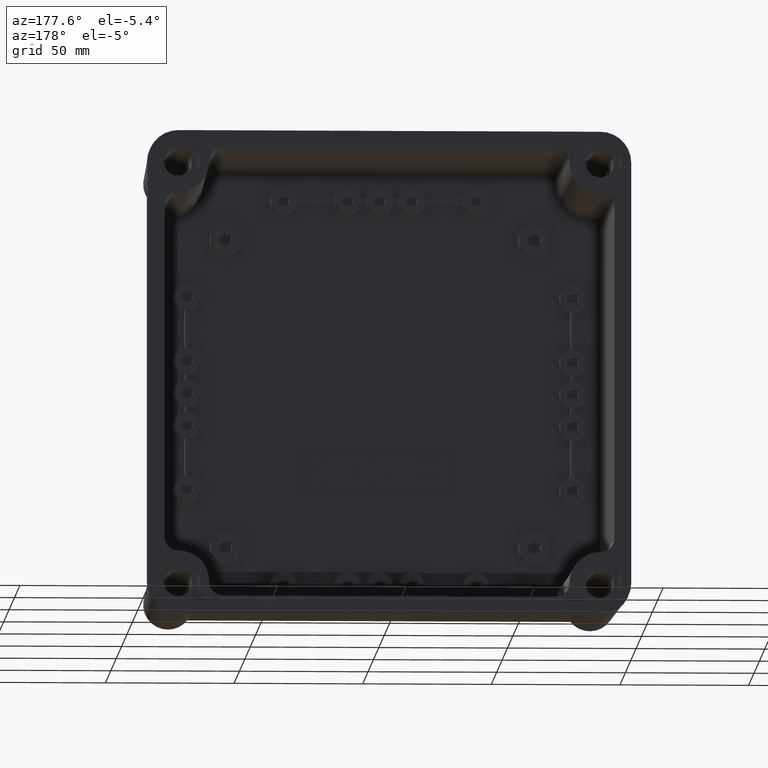
[diagram: clean part render]
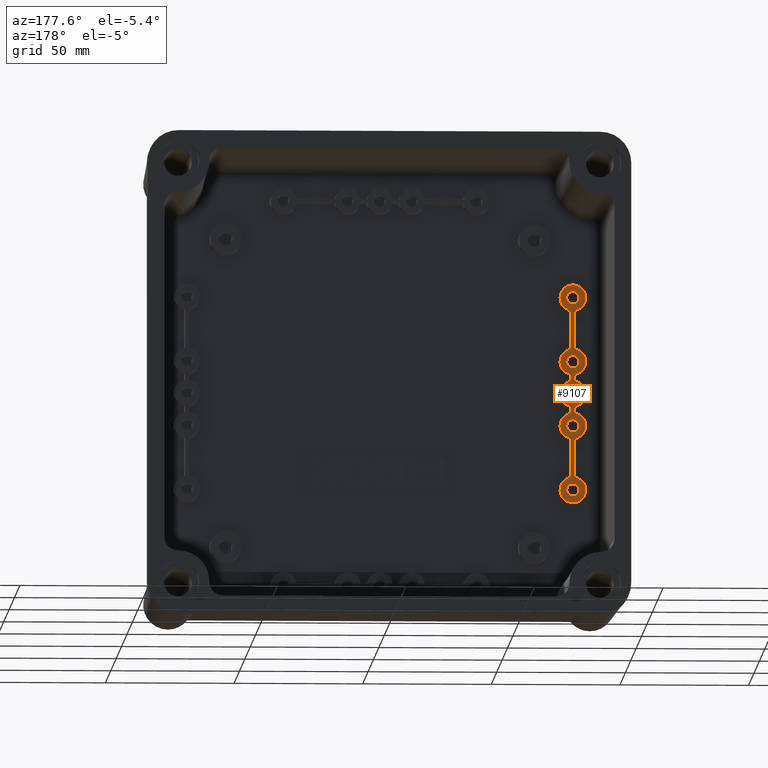
[diagram: same view with one face highlighted and labeled with its STEP entity id]
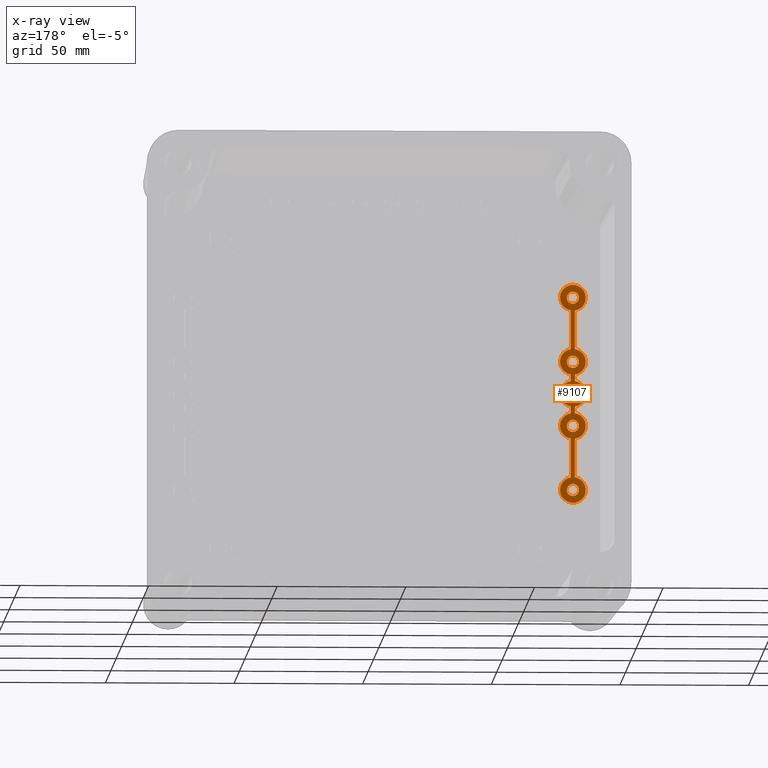
[diagram: x-ray of the same camera — body ghosted, the highlighted face saturated]
A machine part, auxiliary view. The second image highlights one B-rep face of the part: STEP entity #9107.
The next image is the same camera in x-ray: the body ghosted, the highlighted face saturated — about 0% of this face is hidden behind the body in this view.
In plain terms, the highlighted planar face has unit normal (0, 1, 0).
Its self-contained STEP definition (entity closure, byte-faithful):
#2040 = CARTESIAN_POINT ( 'NONE',  ( -75.00000000000000000, 10.49999999999999800, -42.49999999999999300 ) ) ;
#3283 = CARTESIAN_POINT ( 'NONE',  ( -75.00000000000000000, 10.49999999999999800, -14.89999999999999300 ) ) ;
#3326 = CARTESIAN_POINT ( 'NONE',  ( -75.00000000000000000, 10.49999999999999800, -39.89999999999999100 ) ) ;
#3351 = DIRECTION ( 'NONE',  ( 0.0000000000000000000, 0.0000000000000000000, 1.000000000000000000 ) ) ;
#3352 = DIRECTION ( 'NONE',  ( 0.0000000000000000000, 1.000000000000000000, 0.0000000000000000000 ) ) ;
#3353 = AXIS2_PLACEMENT_3D ( 'NONE', #3365, #3352, #3351 ) ;
#3365 = CARTESIAN_POINT ( 'NONE',  ( -75.00000000000000000, 10.49999999999999800, -37.49999999999999300 ) ) ;
#3367 = CARTESIAN_POINT ( 'NONE',  ( -75.00000000000000000, 10.49999999999999800, -35.09999999999999400 ) ) ;
#3378 = CIRCLE ( 'NONE', #3353, 2.399999999999999500 ) ;
#3415 = AXIS2_PLACEMENT_3D ( 'NONE', #3478, #3477, #3476 ) ;
#3426 = CIRCLE ( 'NONE', #3415, 2.400000000000001200 ) ;
#3448 = DIRECTION ( 'NONE',  ( 0.0000000000000000000, 1.000000000000000000, 0.0000000000000000000 ) ) ;
#3449 = CIRCLE ( 'NONE', #3502, 2.400000000000001200 ) ;
#3458 = CARTESIAN_POINT ( 'NONE',  ( -75.00000000000000000, 10.49999999999999800, 37.49999999999999300 ) ) ;
#3459 = CARTESIAN_POINT ( 'NONE',  ( -75.00000000000000000, 10.49999999999999800, 35.09999999999999400 ) ) ;
#3473 = CARTESIAN_POINT ( 'NONE',  ( -75.00000000000000000, 10.49999999999999800, -10.09999999999999100 ) ) ;
#3476 = DIRECTION ( 'NONE',  ( 0.0000000000000000000, 0.0000000000000000000, 1.000000000000000000 ) ) ;
#3477 = DIRECTION ( 'NONE',  ( 0.0000000000000000000, 1.000000000000000000, 0.0000000000000000000 ) ) ;
#3478 = CARTESIAN_POINT ( 'NONE',  ( -75.00000000000000000, 10.49999999999999800, -12.49999999999999300 ) ) ;
#3480 = CARTESIAN_POINT ( 'NONE',  ( -75.00000000000000000, 10.49999999999999800, 14.89999999999999300 ) ) ;
#3488 = DIRECTION ( 'NONE',  ( 0.0000000000000000000, 0.0000000000000000000, 1.000000000000000000 ) ) ;
#3489 = DIRECTION ( 'NONE',  ( 0.0000000000000000000, 1.000000000000000000, 0.0000000000000000000 ) ) ;
#3493 = CARTESIAN_POINT ( 'NONE',  ( -75.00000000000000000, 10.49999999999999800, 39.89999999999999100 ) ) ;
#3501 = CARTESIAN_POINT ( 'NONE',  ( -75.00000000000000000, 10.49999999999999800, 10.09999999999999100 ) ) ;
#3502 = AXIS2_PLACEMENT_3D ( 'NONE', #3507, #3489, #3488 ) ;
#3507 = CARTESIAN_POINT ( 'NONE',  ( -75.00000000000000000, 10.49999999999999800, 12.49999999999999300 ) ) ;
#3508 = DIRECTION ( 'NONE',  ( 0.0000000000000000000, 0.0000000000000000000, 1.000000000000000000 ) ) ;
#3509 = AXIS2_PLACEMENT_3D ( 'NONE', #3458, #3448, #3508 ) ;
#3510 = CIRCLE ( 'NONE', #3509, 2.399999999999999500 ) ;
#3612 = AXIS2_PLACEMENT_3D ( 'NONE', #3685, #3684, #3683 ) ;
#3628 = CARTESIAN_POINT ( 'NONE',  ( -75.00000000000000000, 10.49999999999999800, -2.400000000000000800 ) ) ;
#3630 = CIRCLE ( 'NONE', #3612, 2.400000000000000800 ) ;
#3632 = CARTESIAN_POINT ( 'NONE',  ( -75.00000000000000000, 10.49999999999999800, 2.400000000000000800 ) ) ;
#3683 = DIRECTION ( 'NONE',  ( 0.0000000000000000000, 0.0000000000000000000, 1.000000000000000000 ) ) ;
#3684 = DIRECTION ( 'NONE',  ( 0.0000000000000000000, 1.000000000000000000, 0.0000000000000000000 ) ) ;
#3685 = CARTESIAN_POINT ( 'NONE',  ( -75.00000000000000000, 10.49999999999999800, 0.0000000000000000000 ) ) ;
#3919 = CIRCLE ( 'NONE', #4173, 4.999999999999988500 ) ;
#4173 = AXIS2_PLACEMENT_3D ( 'NONE', #4192, #4191, #4180 ) ;
#4180 = DIRECTION ( 'NONE',  ( 0.0000000000000000000, 0.0000000000000000000, 1.000000000000000000 ) ) ;
#4184 = DIRECTION ( 'NONE',  ( 0.0000000000000000000, 0.0000000000000000000, 1.000000000000000000 ) ) ;
#4185 = DIRECTION ( 'NONE',  ( 0.0000000000000000000, 1.000000000000000000, 0.0000000000000000000 ) ) ;
#4190 = CIRCLE ( 'NONE', #4205, 2.400000000000001200 ) ;
#4191 = DIRECTION ( 'NONE',  ( -0.0000000000000000000, -1.000000000000000000, -0.0000000000000000000 ) ) ;
#4192 = CARTESIAN_POINT ( 'NONE',  ( -75.00000000000000000, 10.49999999999999800, 12.49999999999999300 ) ) ;
#4198 = CARTESIAN_POINT ( 'NONE',  ( -75.00000000000000000, 10.49999999999999800, 12.49999999999999300 ) ) ;
#4205 = AXIS2_PLACEMENT_3D ( 'NONE', #4198, #4185, #4184 ) ;
#4464 = CARTESIAN_POINT ( 'NONE',  ( -74.24999999999998600, 10.49999999999999800, 7.556570016678707100 ) ) ;
#4486 = CARTESIAN_POINT ( 'NONE',  ( -75.75000000000000000, 10.49999999999999800, -4.943429983321292000 ) ) ;
#4578 = CARTESIAN_POINT ( 'NONE',  ( -74.24999999999998600, 10.49999999999999800, -17.44342998332127300 ) ) ;
#4611 = CARTESIAN_POINT ( 'NONE',  ( -74.24999999999998600, 10.49999999999999800, 32.55657001667868400 ) ) ;
#4632 = CARTESIAN_POINT ( 'NONE',  ( -75.74999999999998600, 10.49999999999999800, 32.55657001667868400 ) ) ;
#4647 = DIRECTION ( 'NONE',  ( 0.0000000000000000000, 0.0000000000000000000, 1.000000000000000000 ) ) ;
#4648 = DIRECTION ( 'NONE',  ( 0.0000000000000000000, 1.000000000000000000, 0.0000000000000000000 ) ) ;
#4649 = CARTESIAN_POINT ( 'NONE',  ( -75.00000000000000000, 10.49999999999999800, 37.49999999999999300 ) ) ;
#4655 = DIRECTION ( 'NONE',  ( 0.0000000000000000000, 0.0000000000000000000, 1.000000000000000000 ) ) ;
#4656 = VECTOR ( 'NONE', #4655, 1000.000000000000000 ) ;
#4657 = CARTESIAN_POINT ( 'NONE',  ( -74.25000000000000000, 10.49999999999999800, -37.50000000000000700 ) ) ;
#4658 = AXIS2_PLACEMENT_3D ( 'NONE', #4649, #4648, #4647 ) ;
#4660 = LINE ( 'NONE', #4657, #4656 ) ;
#4662 = CARTESIAN_POINT ( 'NONE',  ( -75.75000000000001400, 10.49999999999999800, 4.943429983321292000 ) ) ;
#4671 = DIRECTION ( 'NONE',  ( 0.0000000000000000000, 0.0000000000000000000, 1.000000000000000000 ) ) ;
#4672 = DIRECTION ( 'NONE',  ( -0.0000000000000000000, -1.000000000000000000, -0.0000000000000000000 ) ) ;
#4673 = AXIS2_PLACEMENT_3D ( 'NONE', #4676, #4672, #4671 ) ;
#4674 = CIRCLE ( 'NONE', #4673, 5.000000000000004400 ) ;
#4676 = CARTESIAN_POINT ( 'NONE',  ( -75.00000000000000000, 10.49999999999999800, 37.49999999999999300 ) ) ;
#4677 = CIRCLE ( 'NONE', #4658, 2.399999999999999500 ) ;
#4678 = CARTESIAN_POINT ( 'NONE',  ( -75.00000000000000000, 10.49999999999999800, -12.49999999999999300 ) ) ;
#4679 = FACE_BOUND ( 'NONE', #9043, .T. ) ;
#4683 = AXIS2_PLACEMENT_3D ( 'NONE', #4678, #4737, #4728 ) ;
#4684 = FACE_BOUND ( 'NONE', #9047, .T. ) ;
#4686 = CIRCLE ( 'NONE', #4727, 4.999999999999989300 ) ;
#4696 = CARTESIAN_POINT ( 'NONE',  ( -74.24999999999998600, 10.49999999999999800, -7.556570016678707100 ) ) ;
#4698 = CARTESIAN_POINT ( 'NONE',  ( -75.00000000000000000, 10.49999999999999800, -12.49999999999999300 ) ) ;
#4708 = CIRCLE ( 'NONE', #4716, 2.400000000000001200 ) ;
#4709 = DIRECTION ( 'NONE',  ( 0.0000000000000000000, 0.0000000000000000000, 1.000000000000000000 ) ) ;
#4710 = VECTOR ( 'NONE', #4709, 1000.000000000000000 ) ;
#4711 = CARTESIAN_POINT ( 'NONE',  ( -74.24999999999998600, 10.49999999999999800, 2.824565742577563400E-014 ) ) ;
#4712 = LINE ( 'NONE', #4711, #4779 ) ;
#4713 = DIRECTION ( 'NONE',  ( 0.0000000000000000000, 0.0000000000000000000, 1.000000000000000000 ) ) ;
#4714 = DIRECTION ( 'NONE',  ( 0.0000000000000000000, 1.000000000000000000, 0.0000000000000000000 ) ) ;
#4715 = CARTESIAN_POINT ( 'NONE',  ( 189.2621207869946100, 10.49999999999999800, 2.824565742577563400E-014 ) ) ;
#4716 = AXIS2_PLACEMENT_3D ( 'NONE', #4698, #4732, #4773 ) ;
#4717 = CARTESIAN_POINT ( 'NONE',  ( -74.25000000000000000, 10.49999999999999800, -37.50000000000000700 ) ) ;
#4718 = LINE ( 'NONE', #4717, #4710 ) ;
#4720 = CARTESIAN_POINT ( 'NONE',  ( -74.24999999999998600, 10.49999999999999800, -32.55657001667869100 ) ) ;
#4721 = FACE_OUTER_BOUND ( 'NONE', #9051, .T. ) ;
#4722 = PLANE ( 'NONE',  #4726 ) ;
#4723 = DIRECTION ( 'NONE',  ( 0.0000000000000000000, 0.0000000000000000000, 1.000000000000000000 ) ) ;
#4724 = DIRECTION ( 'NONE',  ( -0.0000000000000000000, -1.000000000000000000, -0.0000000000000000000 ) ) ;
#4725 = FACE_BOUND ( 'NONE', #9142, .T. ) ;
#4726 = AXIS2_PLACEMENT_3D ( 'NONE', #4715, #4714, #4713 ) ;
#4727 = AXIS2_PLACEMENT_3D ( 'NONE', #4738, #4724, #4723 ) ;
#4728 = DIRECTION ( 'NONE',  ( 0.0000000000000000000, 0.0000000000000000000, 1.000000000000000000 ) ) ;
#4729 = FACE_BOUND ( 'NONE', #9238, .T. ) ;
#4730 = FACE_BOUND ( 'NONE', #9124, .T. ) ;
#4731 = CIRCLE ( 'NONE', #4683, 4.999999999999989300 ) ;
#4732 = DIRECTION ( 'NONE',  ( 0.0000000000000000000, 1.000000000000000000, 0.0000000000000000000 ) ) ;
#4737 = DIRECTION ( 'NONE',  ( 0.0000000000000000000, 1.000000000000000000, 0.0000000000000000000 ) ) ;
#4738 = CARTESIAN_POINT ( 'NONE',  ( -75.00000000000000000, 10.49999999999999800, 0.0000000000000000000 ) ) ;
#4740 = DIRECTION ( 'NONE',  ( 0.0000000000000000000, 0.0000000000000000000, 1.000000000000000000 ) ) ;
#4741 = DIRECTION ( 'NONE',  ( 0.0000000000000000000, 1.000000000000000000, 0.0000000000000000000 ) ) ;
#4742 = CARTESIAN_POINT ( 'NONE',  ( -75.00000000000000000, 10.49999999999999800, -12.49999999999999300 ) ) ;
#4743 = DIRECTION ( 'NONE',  ( 0.0000000000000000000, 0.0000000000000000000, 1.000000000000000000 ) ) ;
#4744 = DIRECTION ( 'NONE',  ( -0.0000000000000000000, -1.000000000000000000, -0.0000000000000000000 ) ) ;
#4745 = CARTESIAN_POINT ( 'NONE',  ( -75.00000000000000000, 10.49999999999999800, 0.0000000000000000000 ) ) ;
#4746 = AXIS2_PLACEMENT_3D ( 'NONE', #4742, #4741, #4740 ) ;
#4748 = DIRECTION ( 'NONE',  ( 0.0000000000000000000, 0.0000000000000000000, 1.000000000000000000 ) ) ;
#4749 = VECTOR ( 'NONE', #4748, 1000.000000000000000 ) ;
#4750 = CARTESIAN_POINT ( 'NONE',  ( -74.25000000000000000, 10.49999999999999800, -37.50000000000000700 ) ) ;
#4753 = DIRECTION ( 'NONE',  ( -1.850371707708594300E-016, 0.0000000000000000000, 1.000000000000000000 ) ) ;
#4754 = VECTOR ( 'NONE', #4753, 1000.000000000000000 ) ;
#4755 = CARTESIAN_POINT ( 'NONE',  ( -75.75000000000000000, 10.49999999999999800, -37.50000000000000700 ) ) ;
#4756 = LINE ( 'NONE', #4755, #4754 ) ;
#4759 = AXIS2_PLACEMENT_3D ( 'NONE', #4745, #4744, #4743 ) ;
#4760 = LINE ( 'NONE', #4750, #4749 ) ;
#4764 = CIRCLE ( 'NONE', #4746, 4.999999999999989300 ) ;
#4765 = DIRECTION ( 'NONE',  ( -1.850371707708594300E-016, 0.0000000000000000000, 1.000000000000000000 ) ) ;
#4766 = VECTOR ( 'NONE', #4765, 1000.000000000000000 ) ;
#4767 = CARTESIAN_POINT ( 'NONE',  ( -75.75000000000000000, 10.49999999999999800, -37.50000000000000700 ) ) ;
#4768 = LINE ( 'NONE', #4767, #4766 ) ;
#4769 = CIRCLE ( 'NONE', #4759, 4.999999999999989300 ) ;
#4770 = CARTESIAN_POINT ( 'NONE',  ( -74.24999999999998600, 10.49999999999999800, 17.44342998332127300 ) ) ;
#4773 = DIRECTION ( 'NONE',  ( 0.0000000000000000000, 0.0000000000000000000, 1.000000000000000000 ) ) ;
#4774 = CARTESIAN_POINT ( 'NONE',  ( -75.75000000000000000, 10.49999999999999800, -7.556570016678701800 ) ) ;
#4776 = CARTESIAN_POINT ( 'NONE',  ( -74.24999999999998600, 10.49999999999999800, -4.943429983321284900 ) ) ;
#4777 = DIRECTION ( 'NONE',  ( 0.0000000000000000000, 0.0000000000000000000, 1.000000000000000000 ) ) ;
#4779 = VECTOR ( 'NONE', #4777, 1000.000000000000000 ) ;
#4794 = DIRECTION ( 'NONE',  ( 0.0000000000000000000, 0.0000000000000000000, 1.000000000000000000 ) ) ;
#4795 = DIRECTION ( 'NONE',  ( 0.0000000000000000000, 1.000000000000000000, 0.0000000000000000000 ) ) ;
#4796 = AXIS2_PLACEMENT_3D ( 'NONE', #4807, #4795, #4794 ) ;
#4797 = CIRCLE ( 'NONE', #4796, 5.000000000000004400 ) ;
#4801 = DIRECTION ( 'NONE',  ( 0.0000000000000000000, 0.0000000000000000000, 1.000000000000000000 ) ) ;
#4802 = DIRECTION ( 'NONE',  ( 0.0000000000000000000, 1.000000000000000000, 0.0000000000000000000 ) ) ;
#4803 = CARTESIAN_POINT ( 'NONE',  ( -75.00000000000000000, 10.49999999999999800, 0.0000000000000000000 ) ) ;
#4804 = AXIS2_PLACEMENT_3D ( 'NONE', #4803, #4802, #4801 ) ;
#4805 = CIRCLE ( 'NONE', #4804, 2.400000000000000800 ) ;
#4807 = CARTESIAN_POINT ( 'NONE',  ( -75.00000000000000000, 10.49999999999999800, -37.49999999999999300 ) ) ;
#4812 = CARTESIAN_POINT ( 'NONE',  ( -74.24999999999998600, 10.49999999999999800, 4.943429983321284900 ) ) ;
#4813 = CARTESIAN_POINT ( 'NONE',  ( -75.75000000000000000, 10.49999999999999800, -17.44342998332128000 ) ) ;
#4823 = CIRCLE ( 'NONE', #4827, 4.999999999999988500 ) ;
#4827 = AXIS2_PLACEMENT_3D ( 'NONE', #4830, #4864, #4863 ) ;
#4830 = CARTESIAN_POINT ( 'NONE',  ( -75.00000000000000000, 10.49999999999999800, 12.49999999999999300 ) ) ;
#4850 = DIRECTION ( 'NONE',  ( 0.0000000000000000000, 0.0000000000000000000, 1.000000000000000000 ) ) ;
#4851 = DIRECTION ( 'NONE',  ( 0.0000000000000000000, 1.000000000000000000, 0.0000000000000000000 ) ) ;
#4852 = CARTESIAN_POINT ( 'NONE',  ( -75.00000000000000000, 10.49999999999999800, -37.49999999999999300 ) ) ;
#4853 = AXIS2_PLACEMENT_3D ( 'NONE', #4852, #4851, #4850 ) ;
#4860 = CIRCLE ( 'NONE', #4853, 2.399999999999999500 ) ;
#4863 = DIRECTION ( 'NONE',  ( 0.0000000000000000000, 0.0000000000000000000, 1.000000000000000000 ) ) ;
#4864 = DIRECTION ( 'NONE',  ( -0.0000000000000000000, -1.000000000000000000, -0.0000000000000000000 ) ) ;
#4865 = CARTESIAN_POINT ( 'NONE',  ( -75.75000000000001400, 10.49999999999999800, 7.556570016678705300 ) ) ;
#4867 = CARTESIAN_POINT ( 'NONE',  ( -75.75000000000001400, 10.49999999999999800, 17.44342998332128000 ) ) ;
#4869 = DIRECTION ( 'NONE',  ( -1.850371707708594300E-016, 0.0000000000000000000, 1.000000000000000000 ) ) ;
#4870 = VECTOR ( 'NONE', #4869, 1000.000000000000000 ) ;
#4871 = CARTESIAN_POINT ( 'NONE',  ( -75.75000000000000000, 10.49999999999999800, -37.50000000000000700 ) ) ;
#4872 = LINE ( 'NONE', #4871, #4870 ) ;
#4873 = DIRECTION ( 'NONE',  ( -1.850371707708594300E-016, 0.0000000000000000000, 1.000000000000000000 ) ) ;
#4874 = VECTOR ( 'NONE', #4873, 1000.000000000000000 ) ;
#4875 = CARTESIAN_POINT ( 'NONE',  ( -75.74999999999998600, 10.49999999999999800, -2.079143562463510900E-014 ) ) ;
#4876 = LINE ( 'NONE', #4875, #4874 ) ;
#6663 = VERTEX_POINT ( 'NONE', #2040 ) ;
#7817 = VERTEX_POINT ( 'NONE', #3283 ) ;
#7828 = VERTEX_POINT ( 'NONE', #3326 ) ;
#7833 = VERTEX_POINT ( 'NONE', #3367 ) ;
#7843 = EDGE_CURVE ( 'NONE', #7828, #7833, #3378, .T. ) ;
#7896 = EDGE_CURVE ( 'NONE', #7817, #7924, #3426, .T. ) ;
#7899 = VERTEX_POINT ( 'NONE', #3480 ) ;
#7924 = VERTEX_POINT ( 'NONE', #3473 ) ;
#7925 = EDGE_CURVE ( 'NONE', #7956, #7940, #3510, .T. ) ;
#7939 = EDGE_CURVE ( 'NONE', #7949, #7899, #3449, .T. ) ;
#7940 = VERTEX_POINT ( 'NONE', #3493 ) ;
#7949 = VERTEX_POINT ( 'NONE', #3501 ) ;
#7956 = VERTEX_POINT ( 'NONE', #3459 ) ;
#8052 = VERTEX_POINT ( 'NONE', #3632 ) ;
#8066 = VERTEX_POINT ( 'NONE', #3628 ) ;
#8070 = EDGE_CURVE ( 'NONE', #8066, #8052, #3630, .T. ) ;
#8659 = CIRCLE ( 'NONE', #8662, 5.000000000000004400 ) ;
#8662 = AXIS2_PLACEMENT_3D ( 'NONE', #8678, #8795, #8786 ) ;
#8678 = CARTESIAN_POINT ( 'NONE',  ( -75.00000000000000000, 10.49999999999999800, -37.49999999999999300 ) ) ;
#8786 = DIRECTION ( 'NONE',  ( 0.0000000000000000000, 0.0000000000000000000, 1.000000000000000000 ) ) ;
#8795 = DIRECTION ( 'NONE',  ( 0.0000000000000000000, 1.000000000000000000, 0.0000000000000000000 ) ) ;
#8937 = CARTESIAN_POINT ( 'NONE',  ( -75.74999999999998600, 10.49999999999999800, -32.55657001667868400 ) ) ;
#8995 = VERTEX_POINT ( 'NONE', #4632 ) ;
#9002 = VERTEX_POINT ( 'NONE', #4611 ) ;
#9010 = EDGE_CURVE ( 'NONE', #9002, #8995, #4674, .T. ) ;
#9034 = VERTEX_POINT ( 'NONE', #4578 ) ;
#9035 = ORIENTED_EDGE ( 'NONE', *, *, #9109, .F. ) ;
#9037 = ORIENTED_EDGE ( 'NONE', *, *, #9045, .F. ) ;
#9038 = ORIENTED_EDGE ( 'NONE', *, *, #9155, .F. ) ;
#9041 = ORIENTED_EDGE ( 'NONE', *, *, #8070, .F. ) ;
#9043 = EDGE_LOOP ( 'NONE', ( #9096, #9153 ) ) ;
#9045 = EDGE_CURVE ( 'NONE', #9159, #9151, #4660, .T. ) ;
#9046 = ORIENTED_EDGE ( 'NONE', *, *, #9010, .F. ) ;
#9047 = EDGE_LOOP ( 'NONE', ( #9131, #9163 ) ) ;
#9049 = EDGE_CURVE ( 'NONE', #7940, #7956, #4677, .T. ) ;
#9051 = EDGE_LOOP ( 'NONE', ( #9046, #9128, #9038, #9037, #9111, #9098, #9053, #9035, #9113, #9115, #9143, #9171, #9149, #9170, #9102, #9196, #9226 ) ) ;
#9053 = ORIENTED_EDGE ( 'NONE', *, *, #9099, .T. ) ;
#9056 = VERTEX_POINT ( 'NONE', #4662 ) ;
#9096 = ORIENTED_EDGE ( 'NONE', *, *, #9120, .F. ) ;
#9097 = ORIENTED_EDGE ( 'NONE', *, *, #9160, .F. ) ;
#9098 = ORIENTED_EDGE ( 'NONE', *, *, #9139, .F. ) ;
#9099 = EDGE_CURVE ( 'NONE', #9104, #9034, #4731, .T. ) ;
#9101 = EDGE_CURVE ( 'NONE', #9056, #9146, #4686, .T. ) ;
#9102 = ORIENTED_EDGE ( 'NONE', *, *, #9218, .T. ) ;
#9104 = VERTEX_POINT ( 'NONE', #4696 ) ;
#9107 = ADVANCED_FACE ( 'NONE', ( #4725, #4679, #4684, #4730, #4729, #4721 ), #4722, .T. ) ;
#9109 = EDGE_CURVE ( 'NONE', #9116, #9034, #4718, .T. ) ;
#9111 = ORIENTED_EDGE ( 'NONE', *, *, #9140, .F. ) ;
#9113 = ORIENTED_EDGE ( 'NONE', *, *, #9167, .T. ) ;
#9115 = ORIENTED_EDGE ( 'NONE', *, *, #13522, .T. ) ;
#9116 = VERTEX_POINT ( 'NONE', #4720 ) ;
#9118 = EDGE_CURVE ( 'NONE', #9129, #9002, #4712, .T. ) ;
#9120 = EDGE_CURVE ( 'NONE', #7924, #7817, #4708, .T. ) ;
#9121 = VERTEX_POINT ( 'NONE', #4776 ) ;
#9124 = EDGE_LOOP ( 'NONE', ( #9173, #9136 ) ) ;
#9125 = EDGE_CURVE ( 'NONE', #9126, #9146, #4768, .T. ) ;
#9126 = VERTEX_POINT ( 'NONE', #4774 ) ;
#9128 = ORIENTED_EDGE ( 'NONE', *, *, #9118, .F. ) ;
#9129 = VERTEX_POINT ( 'NONE', #4770 ) ;
#9131 = ORIENTED_EDGE ( 'NONE', *, *, #9152, .F. ) ;
#9134 = EDGE_CURVE ( 'NONE', #13552, #9157, #4756, .T. ) ;
#9136 = ORIENTED_EDGE ( 'NONE', *, *, #7925, .F. ) ;
#9139 = EDGE_CURVE ( 'NONE', #9104, #9121, #4760, .T. ) ;
#9140 = EDGE_CURVE ( 'NONE', #9121, #9159, #4769, .T. ) ;
#9142 = EDGE_LOOP ( 'NONE', ( #9154, #9166 ) ) ;
#9143 = ORIENTED_EDGE ( 'NONE', *, *, #9134, .T. ) ;
#9145 = EDGE_CURVE ( 'NONE', #9157, #9126, #4764, .T. ) ;
#9146 = VERTEX_POINT ( 'NONE', #4486 ) ;
#9149 = ORIENTED_EDGE ( 'NONE', *, *, #9125, .T. ) ;
#9151 = VERTEX_POINT ( 'NONE', #4464 ) ;
#9152 = EDGE_CURVE ( 'NONE', #7899, #7949, #4190, .T. ) ;
#9153 = ORIENTED_EDGE ( 'NONE', *, *, #7896, .F. ) ;
#9154 = ORIENTED_EDGE ( 'NONE', *, *, #9239, .F. ) ;
#9155 = EDGE_CURVE ( 'NONE', #9151, #9129, #3919, .T. ) ;
#9157 = VERTEX_POINT ( 'NONE', #4813 ) ;
#9159 = VERTEX_POINT ( 'NONE', #4812 ) ;
#9160 = EDGE_CURVE ( 'NONE', #8052, #8066, #4805, .T. ) ;
#9163 = ORIENTED_EDGE ( 'NONE', *, *, #7939, .F. ) ;
#9166 = ORIENTED_EDGE ( 'NONE', *, *, #7843, .F. ) ;
#9167 = EDGE_CURVE ( 'NONE', #9116, #6663, #4797, .T. ) ;
#9170 = ORIENTED_EDGE ( 'NONE', *, *, #9101, .F. ) ;
#9171 = ORIENTED_EDGE ( 'NONE', *, *, #9145, .T. ) ;
#9173 = ORIENTED_EDGE ( 'NONE', *, *, #9049, .F. ) ;
#9196 = ORIENTED_EDGE ( 'NONE', *, *, #9223, .F. ) ;
#9216 = EDGE_CURVE ( 'NONE', #9225, #8995, #4876, .T. ) ;
#9218 = EDGE_CURVE ( 'NONE', #9056, #9228, #4872, .T. ) ;
#9223 = EDGE_CURVE ( 'NONE', #9225, #9228, #4823, .T. ) ;
#9225 = VERTEX_POINT ( 'NONE', #4867 ) ;
#9226 = ORIENTED_EDGE ( 'NONE', *, *, #9216, .T. ) ;
#9228 = VERTEX_POINT ( 'NONE', #4865 ) ;
#9238 = EDGE_LOOP ( 'NONE', ( #9097, #9041 ) ) ;
#9239 = EDGE_CURVE ( 'NONE', #7833, #7828, #4860, .T. ) ;
#13522 = EDGE_CURVE ( 'NONE', #6663, #13552, #8659, .T. ) ;
#13552 = VERTEX_POINT ( 'NONE', #8937 ) ;